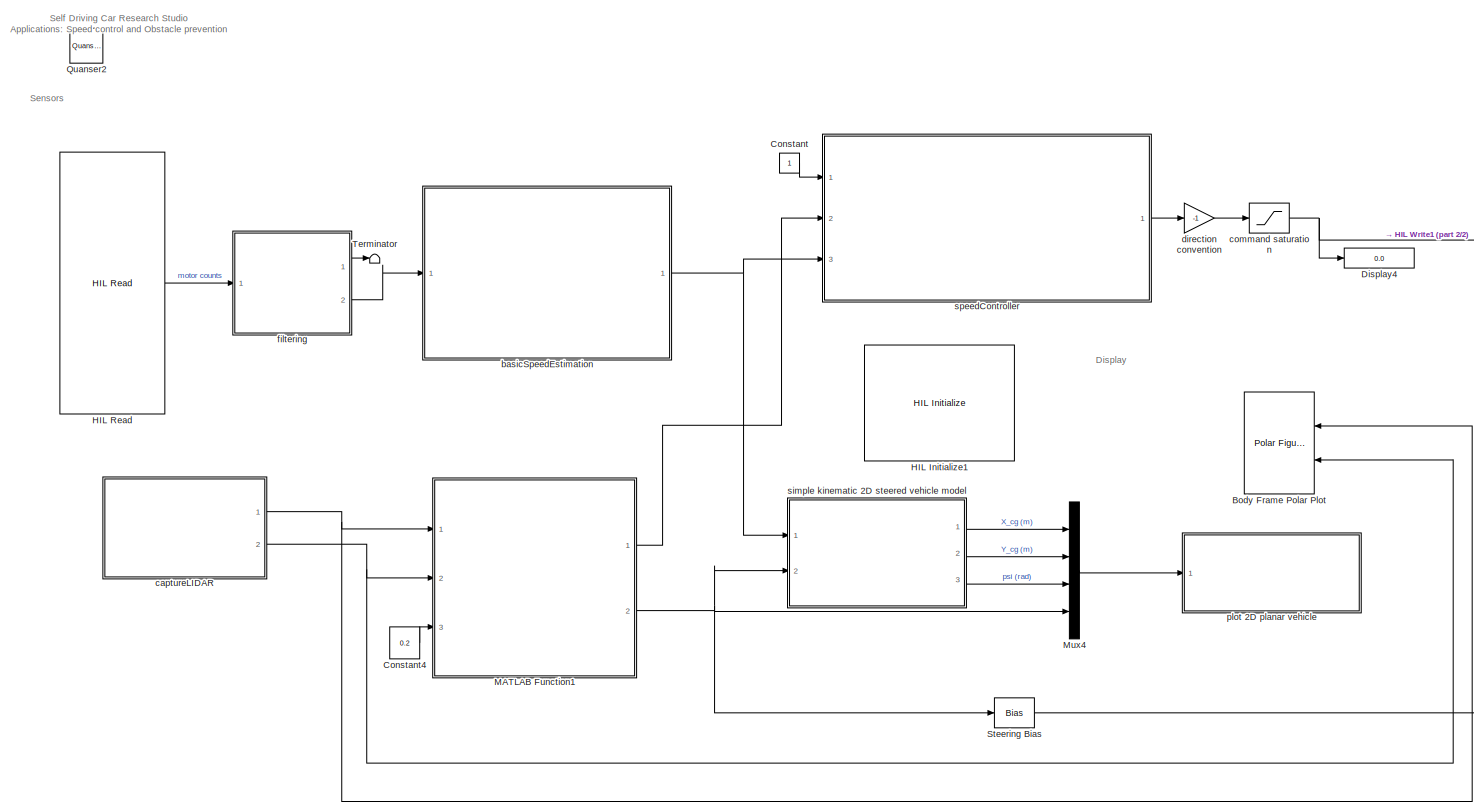
[diagram: root canvas - part 1/2, most of the canvas]
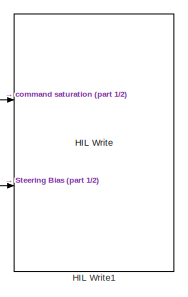
[diagram: root canvas - part 2/2, middle right region]
MODEL slx_56463eb31eb5
KIND model
CONFIG AbsTol = auto
CONFIG EnableMultiTasking = on
CONFIG FixedStep = 1/30
CONFIG MaxStep = auto
CONFIG MinStep = auto
CONFIG RelTol = 1e-3
CONFIG SampleTimeConstraint = Unconstrained
CONFIG SolverName = ode1
CONFIG StartTime = 0.0
CONFIG StopTime = inf
BLOCK [Reference] Body Frame Polar Plot  REF=quarc_library/Sinks/Figures/Polar Figure
  Ports = [2]
  SourceBlock = quarc_library/Sinks/Figures/Polar Figure
  SourceProductName = QUARC Targets
  SourceType = Polar Figure
BLOCK [Constant] Constant
BLOCK [Constant] Constant4
  Value = 0.2
BLOCK [Display] Display4
  Decimation = 1
  Ports = [1]
BLOCK [Reference] HIL Initialize1  REF=quarc_library/Data Acquisition/Generic/Configuration/HIL Initialize
  AttributesFormatString = %<object_name> (%<board_type>-%<board_number>)
  Ports = []
  SourceBlock = quarc_library/Data Acquisition/Generic/Configuration/HIL Initialize
  SourceProductName = QUARC Targets
  SourceType = HIL Initialize
  UserDataPersistent = on
BLOCK [Reference] HIL Read  REF=quarc_library/Data Acquisition/Generic/Immediate I//O/HIL Read
  AttributesFormatString = (%<object_name>)
  Ports = [0, 1]
  SourceBlock = quarc_library/Data Acquisition/Generic/Immediate I//O/HIL Read
  SourceProductName = QUARC Targets
  SourceType = HIL Read
  UserDataPersistent = on
BLOCK [Reference] HIL Write1  REF=quarc_library/Data Acquisition/Generic/Immediate I//O/HIL Write
  AttributesFormatString = (%<object_name>)
  Ports = [2]
  SourceBlock = quarc_library/Data Acquisition/Generic/Immediate I//O/HIL Write
  SourceProductName = QUARC Targets
  SourceType = HIL Write
  UserDataPersistent = on
BLOCK [SubSystem] MATLAB Function1
  ErrorFcn = Stateflow.Translate.translate
  PermitHierarchicalResolution = ExplicitOnly
  Ports = [3, 2]
  RequestExecContextInheritance = off
  SFBlockType = MATLAB Function
  TreatAsAtomicUnit = on
BLOCK [Demux] MATLAB Function1/ Demux 
  Outputs = 1
  Ports = [1, 1]
BLOCK [S-Function] MATLAB Function1/ SFunction 
  EnableBusSupport = on
  FunctionName = sf_sfun
  PortCounts = [3 3]
  Ports = [3, 3]
  SFcnIsStateOwnerBlock = off
  SFunctionDeploymentMode = off
  Tag = Stateflow S-Function 1
BLOCK [Terminator] MATLAB Function1/ Terminator 
BLOCK [Inport] MATLAB Function1/desired_speed
  Port = 3
BLOCK [Inport] MATLAB Function1/distance
BLOCK [Inport] MATLAB Function1/headings
  Port = 2
BLOCK [Outport] MATLAB Function1/speed
BLOCK [Outport] MATLAB Function1/steering
  Port = 2
BLOCK [Mux] Mux4
  DisplayOption = bar
  Ports = [4, 1]
BLOCK [Reference] Quanser2  REF=quarc_library/Logos/Quanser
  Ports = []
  SourceBlock = quarc_library/Logos/Quanser
  SourceProductName = QUARC Targets
  SourceType = Powered by Quanser
BLOCK [Bias] Steering Bias
  Bias = 0.0
  SaturateOnIntegerOverflow = off
BLOCK [Terminator] Terminator
BLOCK [SubSystem] basicSpeedEstimation
  Ports = [1, 1]
  RequestExecContextInheritance = off
BLOCK [Gain] basicSpeedEstimation/counts to rotations
  Gain = 1/720/4
BLOCK [Gain] basicSpeedEstimation/gear ratios
  Gain = (13*19)/(70*37)
BLOCK [Outport] basicSpeedEstimation/longitudinalCarSpeed (m//s)
  VectorParamsAs1DForOutWhenUnconnected = off
BLOCK [Inport] basicSpeedEstimation/motorSpeed (counts//s)
BLOCK [Gain] basicSpeedEstimation/rot//s to rad//s
  Gain = 2*pi
BLOCK [Gain] basicSpeedEstimation/wheel radius
  Gain = 0.0342
BLOCK [SubSystem] captureLIDAR
  Ports = [0, 2]
  RequestExecContextInheritance = off
BLOCK [Constant] captureLIDAR/Constant1
  Value = pi*(0:0.5:359.95)/180
BLOCK [SubSystem] captureLIDAR/MATLAB Function
  ErrorFcn = Stateflow.Translate.translate
  PermitHierarchicalResolution = ExplicitOnly
  Ports = [1, 1]
  RequestExecContextInheritance = off
  SFBlockType = MATLAB Function
  TreatAsAtomicUnit = on
BLOCK [Demux] captureLIDAR/MATLAB Function/ Demux 
  Outputs = 1
  Ports = [1, 1]
BLOCK [S-Function] captureLIDAR/MATLAB Function/ SFunction 
  EnableBusSupport = on
  FunctionName = sf_sfun
  PortCounts = [1 2]
  Ports = [1, 2]
  SFcnIsStateOwnerBlock = off
  SFunctionDeploymentMode = off
  Tag = Stateflow S-Function 10
BLOCK [Terminator] captureLIDAR/MATLAB Function/ Terminator 
BLOCK [Outport] captureLIDAR/MATLAB Function/correctedDistances
  VectorParamsAs1DForOutWhenUnconnected = off
BLOCK [Inport] captureLIDAR/MATLAB Function/distances
BLOCK [Reference] captureLIDAR/Ranging Sensor  REF=quarc_library/Devices/Third-Party/Distance Sensors/Ranging Sensor
  Ports = [0, 5]
  SourceBlock = quarc_library/Devices/Third-Party/Distance Sensors/Ranging Sensor
  SourceProductName = QUARC Targets
  SourceType = Ranging Sensor
BLOCK [Terminator] captureLIDAR/Terminator
BLOCK [Terminator] captureLIDAR/Terminator1
BLOCK [Terminator] captureLIDAR/Terminator2
BLOCK [Terminator] captureLIDAR/Terminator3
BLOCK [Outport] captureLIDAR/distances (m)
  VectorParamsAs1DForOutWhenUnconnected = off
BLOCK [Outport] captureLIDAR/headings (rad)
  Port = 2
  VectorParamsAs1DForOutWhenUnconnected = off
BLOCK [Saturate] command saturation
  LowerLimit = -0.20
  NameLocation = top
  UpperLimit = 0.20
BLOCK [Gain] direction convention
  Gain = -1
  NameLocation = top
BLOCK [SubSystem] filtering
  Ports = [1, 2]
  RequestExecContextInheritance = off
BLOCK [Constant] filtering/Constant2
  Value = 25
BLOCK [Constant] filtering/Constant3
BLOCK [Reference] filtering/Second-Order Low-Pass Filter  REF=quarc_library/Continuous/Second-Order
Low-Pass Filter
  Ports = [4, 2]
  SourceBlock = quarc_library/Continuous/Second-Order\nLow-Pass Filter
  SourceProductName = QUARC Targets
  SourceType = Second-Order Low-Pass Filter
BLOCK [Reference] filtering/Unwrap 2^24  REF=quarc_library/Discontinuities/Inverse
Modulus
  Ports = [1, 1]
  SourceBlock = quarc_library/Discontinuities/Inverse\nModulus
  SourceProductName = QUARC Targets
  SourceType = Inverse Modulus
BLOCK [Inport] filtering/motor counts
BLOCK [Outport] filtering/motor omega (counts//s)
  Port = 2
BLOCK [Outport] filtering/y
BLOCK [SubSystem] plot 2D planar vehicle
  Ports = [1]
  RequestExecContextInheritance = off
BLOCK [S-Function] plot 2D planar vehicle/Animation S-Function
  EnableBusSupport = off
  FunctionName = sanim_XY_vehicle_viz
  Parameters = Config
  Ports = [1]
  SFcnIsStateOwnerBlock = off
  SFunctionDeploymentMode = off
BLOCK [RateTransition] plot 2D planar vehicle/Rate Transition
  Integrity = off
BLOCK [Inport] plot 2D planar vehicle/[X (m), Y (m), psi (rad), delta (rad)]
BLOCK [SubSystem] simple kinematic 2D steered vehicle model
  Ports = [2, 3]
  RequestExecContextInheritance = off
BLOCK [Gain] simple kinematic 2D steered vehicle model/1//L
  Gain = 1/vehicle_length
BLOCK [Display] simple kinematic 2D steered vehicle model/Display
  Decimation = 1
  NameLocation = top
  Ports = [1]
BLOCK [Gain] simple kinematic 2D steered vehicle model/Gain
  Gain = vehicle_length/2
BLOCK [Ground] simple kinematic 2D steered vehicle model/Ground
BLOCK [Integrator] simple kinematic 2D steered vehicle model/Integrator
  InitialCondition = X_ic
  Ports = [1, 1]
BLOCK [Integrator] simple kinematic 2D steered vehicle model/Integrator1
  InitialCondition = Y_ic
  Ports = [1, 1]
BLOCK [Integrator] simple kinematic 2D steered vehicle model/Integrator2
  InitialCondition = yaw_ic
  Ports = [1, 1]
BLOCK [Product] simple kinematic 2D steered vehicle model/Product
  Ports = [2, 1]
  RndMeth = Zero
BLOCK [Product] simple kinematic 2D steered vehicle model/Product1
  Ports = [2, 1]
  RndMeth = Zero
BLOCK [Product] simple kinematic 2D steered vehicle model/Product2
  Ports = [2, 1]
  RndMeth = Zero
BLOCK [Product] simple kinematic 2D steered vehicle model/Product3
  Ports = [2, 1]
  RndMeth = Zero
BLOCK [Product] simple kinematic 2D steered vehicle model/Product4
  Ports = [2, 1]
  RndMeth = Zero
BLOCK [Sum] simple kinematic 2D steered vehicle model/Sum
  Inputs = |+-
  Ports = [2, 1]
BLOCK [Sum] simple kinematic 2D steered vehicle model/Sum1
  Inputs = |++
  Ports = [2, 1]
BLOCK [Terminator] simple kinematic 2D steered vehicle model/Terminator
BLOCK [Trigonometry] simple kinematic 2D steered vehicle model/Trigonometric Function
  Operator = cos
  Ports = [1, 1]
BLOCK [Trigonometry] simple kinematic 2D steered vehicle model/Trigonometric Function1
  Ports = [1, 1]
BLOCK [Trigonometry] simple kinematic 2D steered vehicle model/Trigonometric Function3
  Operator = tan
  Ports = [1, 1]
BLOCK [Outport] simple kinematic 2D steered vehicle model/X_cg (m)
  VectorParamsAs1DForOutWhenUnconnected = off
BLOCK [Outport] simple kinematic 2D steered vehicle model/Y_cg (m)
  Port = 2
  VectorParamsAs1DForOutWhenUnconnected = off
BLOCK [Inport] simple kinematic 2D steered vehicle model/delta_steer (rad)
  Port = 2
BLOCK [Outport] simple kinematic 2D steered vehicle model/psi (rad)
  Port = 3
  VectorParamsAs1DForOutWhenUnconnected = off
BLOCK [Inport] simple kinematic 2D steered vehicle model/v_x (m//s)
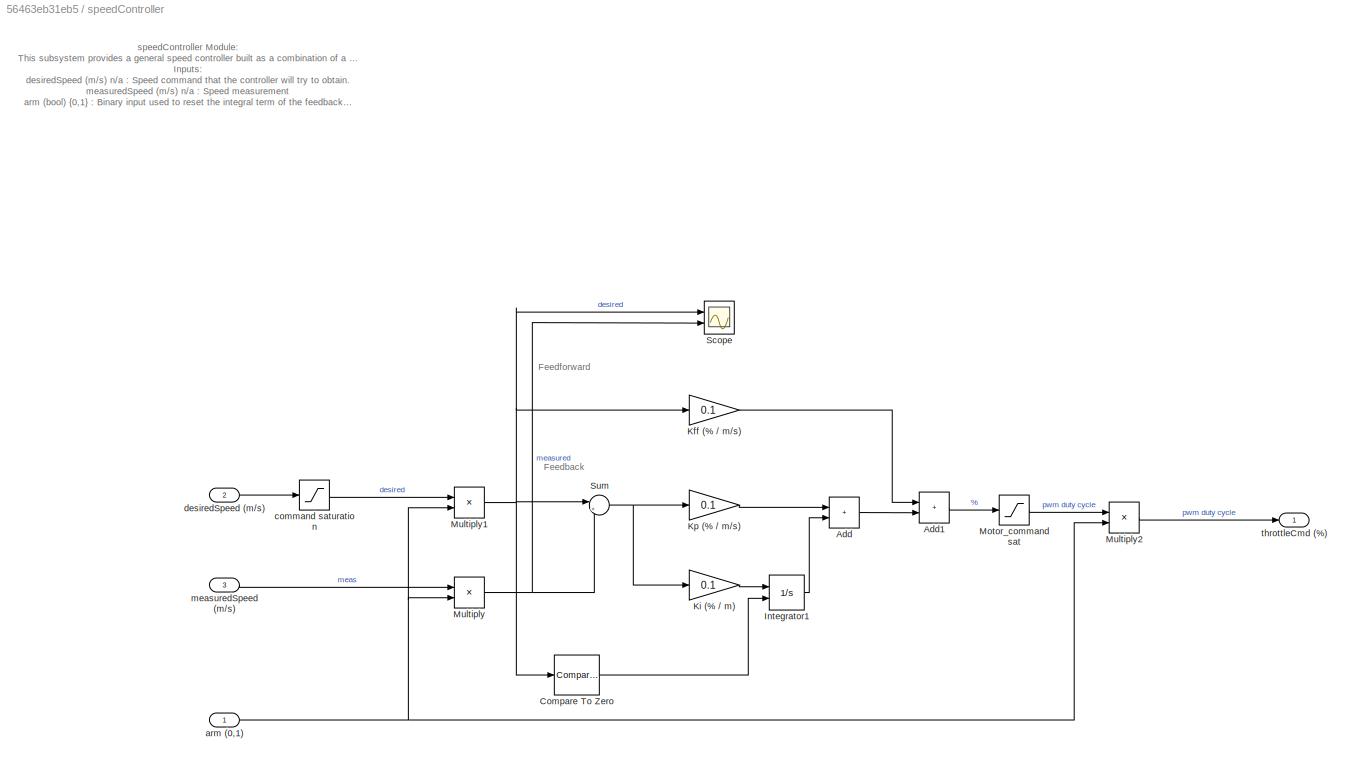
BLOCK [SubSystem] speedController
  Ports = [3, 1]
  RequestExecContextInheritance = off
BLOCK [Sum] speedController/Add
  IconShape = rectangular
  Ports = [2, 1]
BLOCK [Sum] speedController/Add1
  IconShape = rectangular
  Ports = [2, 1]
BLOCK [Reference] speedController/Compare To Zero  REF=simulink/Logic and Bit
Operations/Compare
To Zero
  Ports = [1, 1]
  SourceBlock = simulink/Logic and Bit\nOperations/Compare\nTo Zero
  SourceProductBaseCode = SL
  SourceType = Compare To Zero
BLOCK [Integrator] speedController/Integrator1
  ExternalReset = either
  LimitOutput = on
  LowerSaturationLimit = -0.1
  Ports = [2, 1]
  UpperSaturationLimit = 0.1
BLOCK [Gain] speedController/Kff (% // m//s)
  Gain = 0.1
BLOCK [Gain] speedController/Ki (% // m) 
  Gain = 0.1
BLOCK [Gain] speedController/Kp (% // m//s)
  Gain = 0.1
BLOCK [Saturate] speedController/Motor_command sat
  LinearizeAsGain = off
BLOCK [Product] speedController/Multiply
  Ports = [2, 1]
BLOCK [Product] speedController/Multiply1
  Ports = [2, 1]
BLOCK [Product] speedController/Multiply2
  Ports = [2, 1]
BLOCK [Scope] speedController/Scope
  Floating = off
  NumInputPorts = 2
  Ports = [2]
  ScopeSpecificationString = Simulink.scopes.TimeScopeBlockCfg('CurrentConfiguration', extmgr.ConfigurationSet(extmgr.Configuration('Core','General UI',true),extmgr.Configuration('Core','Source UI',true),extmgr.Configuration('Sources','WiredSimulink',true,'DataLoggingVariableName','ScopeData1'),extmgr.Configuration('Visuals','Time Domain',true,'SerializedDisplays',{struct('MinYLimReal','-0.08848','MaxYLimReal','0.7963','YLabe...<+1483ch>
BLOCK [Sum] speedController/Sum
  Inputs = |+-
  Ports = [2, 1]
BLOCK [Inport] speedController/arm (0,1)
BLOCK [Saturate] speedController/command saturation
  LowerLimit = -0.8
  UpperLimit = 0.8
BLOCK [Inport] speedController/desiredSpeed (m//s)
  Port = 2
BLOCK [Inport] speedController/measuredSpeed (m//s)
  Port = 3
BLOCK [Outport] speedController/throttleCmd (%)
  VectorParamsAs1DForOutWhenUnconnected = off
ANNOTATION (root): Self Driving Car Research Studio Applications: Speed control and Obstacle prevention
ANNOTATION (root): Display
ANNOTATION (root): Sensors
ANNOTATION basicSpeedEstimation: (Diff. pinion*pinion)/(Spur*Diff. spur)
ANNOTATION basicSpeedEstimation: speedEstimation Module: This subsystem converts the motor speed measurements in counts/s to a useful longitudinal car speed in m/s. Inputs: motorSpeed (counts/s) n/a : Drive motor speed measured using an encoder Outputs: longitudinalCarSpeed (m/s) n/a : The platform's longitudinal speed (along the front-rear axis direction)
ANNOTATION basicSpeedEstimation: Estimate car speed from motor encoder counts rate
ANNOTATION basicSpeedEstimation: v = 2*pi*r * omega (if omega is in rot/s) v = r * omega (if omega is in rad/s) r = 0.0342 m
ANNOTATION captureLIDAR: captureLIDAR Module: This subsystem reads the LIDAR data from the QCar. This module reads 720 points per revolution at 30 Hz (30 scans per s). Outputs: distances (m) n/a : Distances to obstacles measured headings (rad) n/a : Headings at which distances were measured
ANNOTATION captureLIDAR: LIDAR Capture, and heading adjustment
ANNOTATION simple kinematic 2D steered vehicle model: Marc Compere <email> created : 30 July 2011 modified: 11 Jan 2016
ANNOTATION simple kinematic 2D steered vehicle model: Simple kinematic vehicle model of wheelbase length L and width W. Non-holonomic constraints on front and rear wheels allow rolling at low speed with no slipping: v_X = [ v_x \cdot cos(\psi_{heading}) -(L/2)\cdot\omega_z\cdotsin(\psi_{heading}) ] v_Y = [ v_x \cdot sin(\psi_{heading}) +(L/2)\cdot\omega_z\cdotcos(\psi_{heading}) ]
ANNOTATION simple kinematic 2D steered vehicle model: X-position in terrain frame
ANNOTATION simple kinematic 2D steered vehicle model: Y-position in terrain frame
ANNOTATION simple kinematic 2D steered vehicle model: vehicle heading
ANNOTATION simple kinematic 2D steered vehicle model: where: v_x - body-fixed vehicle velocity v_X - terrain frame X velocity v_Y - terrain frame Y velocity \psi-dot - same as \omega_z \psi-dot - (v_x/L) \cdot \delta_{steer}
ANNOTATION speedController: speedController Module: This subsystem provides a general speed controller built as a combination of a feedforward and feedback controllers. Inputs: desiredSpeed (m/s) n/a : Speed command that the controller will try to obtain. measuredSpeed (m/s) n/a : Speed measurement arm (bool) {0,1} : Binary input used to reset the integral term of the feedback controller Outputs: throttleCmd (%) n/a : Percen...<+289ch>
ANNOTATION speedController: Feedback
ANNOTATION speedController: Feedforward
LINE Constant4:1 -> MATLAB Function1:3
LINE Constant:1 -> speedController:1
LINE HIL Read:1 -> filtering:1
LINE MATLAB Function1:1 -> speedController:2
NET MATLAB Function1:2 -> Mux4:4, Steering Bias:1, simple kinematic 2D steered vehicle model:2
LINE Mux4:1 -> plot 2D planar vehicle:1
LINE Steering Bias:1 -> HIL Write1:2
LINE basicSpeedEstimation/counts to rotations:1 -> basicSpeedEstimation/gear ratios:1
LINE basicSpeedEstimation/gear ratios:1 -> basicSpeedEstimation/rot//s to rad//s:1
LINE basicSpeedEstimation/motorSpeed (counts//s):1 -> basicSpeedEstimation/counts to rotations:1
LINE basicSpeedEstimation/rot//s to rad//s:1 -> basicSpeedEstimation/wheel radius:1
LINE basicSpeedEstimation/wheel radius:1 -> basicSpeedEstimation/longitudinalCarSpeed (m//s):1
NET basicSpeedEstimation:1 -> simple kinematic 2D steered vehicle model:1, speedController:3
LINE captureLIDAR/Constant1:1 -> captureLIDAR/headings (rad):1
LINE captureLIDAR/MATLAB Function:1 -> captureLIDAR/distances (m):1
LINE captureLIDAR/Ranging Sensor:1 -> captureLIDAR/MATLAB Function:1
LINE captureLIDAR/Ranging Sensor:2 -> captureLIDAR/Terminator:1
LINE captureLIDAR/Ranging Sensor:3 -> captureLIDAR/Terminator1:1
LINE captureLIDAR/Ranging Sensor:4 -> captureLIDAR/Terminator2:1
LINE captureLIDAR/Ranging Sensor:5 -> captureLIDAR/Terminator3:1
NET captureLIDAR:1 -> Body Frame Polar Plot:1, MATLAB Function1:1
NET captureLIDAR:2 -> Body Frame Polar Plot:2, MATLAB Function1:2
NET command saturation:1 -> Display4:1, HIL Write1:1
LINE direction convention:1 -> command saturation:1
LINE filtering/Constant2:1 -> filtering/Second-Order Low-Pass Filter:2
LINE filtering/Constant3:1 -> filtering/Second-Order Low-Pass Filter:3
LINE filtering/Second-Order Low-Pass Filter:1 -> filtering/y:1
LINE filtering/Second-Order Low-Pass Filter:2 -> filtering/motor omega (counts//s):1
NET filtering/Unwrap 2^24:1 -> filtering/Second-Order Low-Pass Filter:1, filtering/Second-Order Low-Pass Filter:4
LINE filtering/motor counts:1 -> filtering/Unwrap 2^24:1
LINE filtering:1 -> Terminator:1
LINE filtering:2 -> basicSpeedEstimation:1
LINE plot 2D planar vehicle/Rate Transition:1 -> plot 2D planar vehicle/Animation S-Function:1
LINE plot 2D planar vehicle/[X (m), Y (m), psi (rad), delta (rad)]:1 -> plot 2D planar vehicle/Rate Transition:1
LINE simple kinematic 2D steered vehicle model/1//L:1 -> simple kinematic 2D steered vehicle model/Product2:1
NET simple kinematic 2D steered vehicle model/Gain:1 -> simple kinematic 2D steered vehicle model/Product3:1, simple kinematic 2D steered vehicle model/Product4:1
LINE simple kinematic 2D steered vehicle model/Ground:1 -> simple kinematic 2D steered vehicle model/Trigonometric Function3:1
LINE simple kinematic 2D steered vehicle model/Integrator1:1 -> simple kinematic 2D steered vehicle model/Y_cg (m):1
NET simple kinematic 2D steered vehicle model/Integrator2:1 -> simple kinematic 2D steered vehicle model/Trigonometric Function1:1, simple kinematic 2D steered vehicle model/Trigonometric Function:1, simple kinematic 2D steered vehicle model/psi (rad):1
LINE simple kinematic 2D steered vehicle model/Integrator:1 -> simple kinematic 2D steered vehicle model/X_cg (m):1
LINE simple kinematic 2D steered vehicle model/Product1:1 -> simple kinematic 2D steered vehicle model/Sum:1
NET simple kinematic 2D steered vehicle model/Product2:1 -> simple kinematic 2D steered vehicle model/Display:1, simple kinematic 2D steered vehicle model/Gain:1, simple kinematic 2D steered vehicle model/Integrator2:1
LINE simple kinematic 2D steered vehicle model/Product3:1 -> simple kinematic 2D steered vehicle model/Sum:2
LINE simple kinematic 2D steered vehicle model/Product4:1 -> simple kinematic 2D steered vehicle model/Sum1:2
LINE simple kinematic 2D steered vehicle model/Product:1 -> simple kinematic 2D steered vehicle model/Sum1:1
LINE simple kinematic 2D steered vehicle model/Sum1:1 -> simple kinematic 2D steered vehicle model/Integrator1:1
LINE simple kinematic 2D steered vehicle model/Sum:1 -> simple kinematic 2D steered vehicle model/Integrator:1
NET simple kinematic 2D steered vehicle model/Trigonometric Function1:1 -> simple kinematic 2D steered vehicle model/Product3:2, simple kinematic 2D steered vehicle model/Product:2
LINE simple kinematic 2D steered vehicle model/Trigonometric Function3:1 -> simple kinematic 2D steered vehicle model/Terminator:1
NET simple kinematic 2D steered vehicle model/Trigonometric Function:1 -> simple kinematic 2D steered vehicle model/Product1:2, simple kinematic 2D steered vehicle model/Product4:2
LINE simple kinematic 2D steered vehicle model/delta_steer (rad):1 -> simple kinematic 2D steered vehicle model/Product2:2
NET simple kinematic 2D steered vehicle model/v_x (m//s):1 -> simple kinematic 2D steered vehicle model/1//L:1, simple kinematic 2D steered vehicle model/Product1:1, simple kinematic 2D steered vehicle model/Product:1
LINE simple kinematic 2D steered vehicle model:1 -> Mux4:1
LINE simple kinematic 2D steered vehicle model:2 -> Mux4:2
LINE simple kinematic 2D steered vehicle model:3 -> Mux4:3
LINE speedController/Add1:1 -> speedController/Motor_command sat:1
LINE speedController/Add:1 -> speedController/Add1:2
LINE speedController/Compare To Zero:1 -> speedController/Integrator1:2
LINE speedController/Integrator1:1 -> speedController/Add:2
LINE speedController/Kff (% // m//s):1 -> speedController/Add1:1
LINE speedController/Ki (% // m) :1 -> speedController/Integrator1:1
LINE speedController/Kp (% // m//s):1 -> speedController/Add:1
LINE speedController/Motor_command sat:1 -> speedController/Multiply2:1
NET speedController/Multiply1:1 -> speedController/Compare To Zero:1, speedController/Kff (% // m//s):1, speedController/Scope:1, speedController/Sum:1
LINE speedController/Multiply2:1 -> speedController/throttleCmd (%):1
NET speedController/Multiply:1 -> speedController/Scope:2, speedController/Sum:2
NET speedController/Sum:1 -> speedController/Ki (% // m) :1, speedController/Kp (% // m//s):1
NET speedController/arm (0,1):1 -> speedController/Multiply1:2, speedController/Multiply2:2, speedController/Multiply:2
LINE speedController/command saturation:1 -> speedController/Multiply1:1
LINE speedController/desiredSpeed (m//s):1 -> speedController/command saturation:1
LINE speedController/measuredSpeed (m//s):1 -> speedController/Multiply:1
LINE speedController:1 -> direction convention:1
note: NET lines group one-source signal fan-out (src -> all destinations, sorted); 1:1 wires keep LINE
CHART MATLAB Function1 states=1 transitions=1
  STATE_LABEL 'eML_blk_kernel()'
  STATE_LABEL 'SCRIPT:\nfunction [speed , steering]  = avoidanceStrategy(distance, headings, desired_speed)\n    X = headings == 0*pi/180;\n    \n    X1 = headings <= 30*pi/180;\n    X2 = headings >= 330*pi/180;\n    \n    Y = distance <= 0.5 & distance >= 0.1;\n    Y1 = distance <= 1 & distance >= 0.1;\n    \n    calc1 = X1.*Y1;\n    calc4 = X2.*Y1;\n    \n   \n    if max(calc1) == 1 && max(calc4) == 1 %  in the cone, atleas...<+383ch>'
CHART captureLIDAR/MATLAB Function states=1 transitions=1
  STATE_LABEL 'eML_blk_kernel()'
  STATE_LABEL 'SCRIPT:\nfunction correctedDistances = bodyFrameAdjustmentOnCapture(distances)\nnum = 720;\ncorrectedDistances = [distances(num/4:-1:1,1); distances(num:-1:num/4 + 1,1)];\n'
CHART  states=0 transitions=0
CHART  states=0 transitions=0
